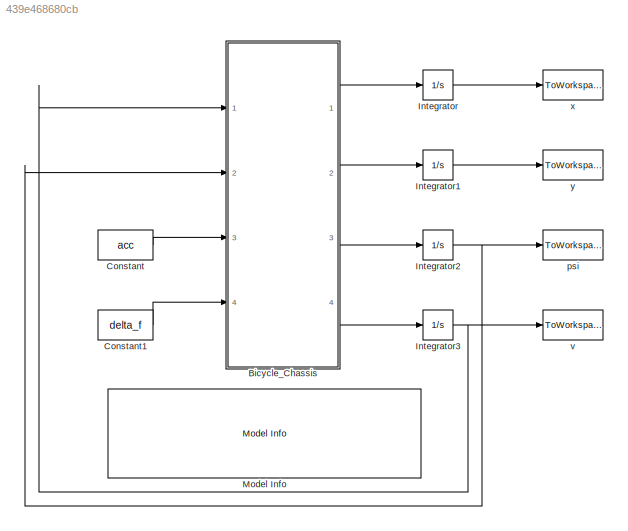
MODEL slx_439e468680cb
KIND model
CONFIG AbsTol = auto
CONFIG EnableMultiTasking = on
CONFIG FixedStep = Ts
CONFIG MaxStep = auto
CONFIG MinStep = auto
CONFIG RelTol = 1e-3
CONFIG SampleTimeConstraint = Unconstrained
CONFIG Solver = FixedStepAuto
CONFIG SolverName = FixedStepAuto
CONFIG StartTime = 0.0
CONFIG StopTime = 10.0
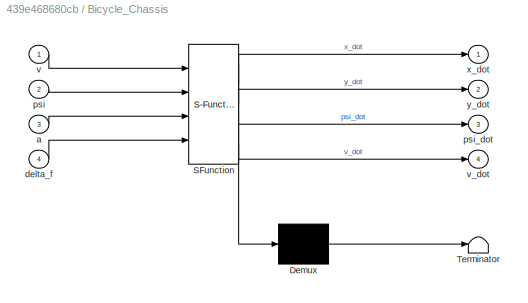
BLOCK [SubSystem]  Bicycle_Chassis
  ErrorFcn = Stateflow.Translate.translate
  PermitHierarchicalResolution = ExplicitOnly
  Ports = [4, 4]
  RequestExecContextInheritance = off
  SFBlockType = MATLAB Function
  TreatAsAtomicUnit = on
BLOCK [Demux]  Bicycle_Chassis/ Demux 
  Outputs = 1
  Ports = [1, 1]
BLOCK [S-Function]  Bicycle_Chassis/ SFunction 
  EnableBusSupport = on
  FunctionName = sf_sfun
  PortCounts = [4 5]
  Ports = [4, 5]
  SFcnIsStateOwnerBlock = off
  SFunctionDeploymentMode = off
  Tag = Stateflow S-Function bic 2
BLOCK [Terminator]  Bicycle_Chassis/ Terminator 
BLOCK [Inport]  Bicycle_Chassis/a
  IconDisplay = Port number
  Port = 3
BLOCK [Inport]  Bicycle_Chassis/delta_f
  IconDisplay = Port number
  Port = 4
BLOCK [Inport]  Bicycle_Chassis/psi
  IconDisplay = Port number
  Port = 2
BLOCK [Outport]  Bicycle_Chassis/psi_dot
  IconDisplay = Port number
  Port = 3
BLOCK [Inport]  Bicycle_Chassis/v
  IconDisplay = Port number
BLOCK [Outport]  Bicycle_Chassis/v_dot
  IconDisplay = Port number
  Port = 4
BLOCK [Outport]  Bicycle_Chassis/x_dot
  IconDisplay = Port number
BLOCK [Outport]  Bicycle_Chassis/y_dot
  IconDisplay = Port number
  Port = 2
BLOCK [Constant] Constant
  Value = acc
BLOCK [Constant] Constant1
  Value = delta_f
BLOCK [Integrator] Integrator
  InitialCondition = x_car0
  Ports = [1, 1]
BLOCK [Integrator] Integrator1
  InitialCondition = y_car0
  Ports = [1, 1]
BLOCK [Integrator] Integrator2
  InitialCondition = psi0
  Ports = [1, 1]
BLOCK [Integrator] Integrator3
  InitialCondition = v0
  Ports = [1, 1]
BLOCK [Reference] Model Info  REF=simulink/Model-Wide
Utilities/Model Info
  Ports = []
  SourceBlock = simulink/Model-Wide\nUtilities/Model Info
  SourceProductBaseCode = SL
  SourceProductName = Simulink
  SourceType = CMBlock
BLOCK [ToWorkspace] psi
  FixptAsFi = on
  MaxDataPoints = inf
  Ports = [1]
  SampleTime = -1
  Save2DSignal = 3-D array (concatenate along third dimension)
  SaveFormat = Timeseries
  VariableName = psi_state
BLOCK [ToWorkspace] v
  FixptAsFi = on
  MaxDataPoints = inf
  Ports = [1]
  SampleTime = -1
  Save2DSignal = 3-D array (concatenate along third dimension)
  SaveFormat = Timeseries
  VariableName = v_state
BLOCK [ToWorkspace] x
  FixptAsFi = on
  MaxDataPoints = inf
  Ports = [1]
  SampleTime = -1
  Save2DSignal = 3-D array (concatenate along third dimension)
  SaveFormat = Timeseries
  VariableName = x_state
BLOCK [ToWorkspace] y
  FixptAsFi = on
  MaxDataPoints = inf
  Ports = [1]
  SampleTime = -1
  Save2DSignal = 3-D array (concatenate along third dimension)
  SaveFormat = Timeseries
  VariableName = y_state
LINE  Bicycle_Chassis:1 -> Integrator:1
LINE  Bicycle_Chassis:2 -> Integrator1:1
LINE  Bicycle_Chassis:3 -> Integrator2:1
LINE  Bicycle_Chassis:4 -> Integrator3:1
LINE Constant1:1 ->  Bicycle_Chassis:4
LINE Constant:1 ->  Bicycle_Chassis:3
LINE Integrator1:1 -> y:1
NET Integrator2:1 ->  Bicycle_Chassis:2, psi:1
NET Integrator3:1 ->  Bicycle_Chassis:1, v:1
LINE Integrator:1 -> x:1
note: NET lines group one-source signal fan-out (src -> all destinations, sorted); 1:1 wires keep LINE
CHART  Bicycle_Chassis states=1 transitions=1
  STATE_LABEL 'eML_blk_kernel()'
  STATE_LABEL 'SCRIPT:\nfunction [x_dot,y_dot,psi_dot,v_dot] = bicycle(v, psi,a,delta_f)\n\nlr = 1.6;\nlf = 1.4;\nwb = lr+lf;\nbeta = atan(lr/wb*tan(delta_f));\n\nx_dot = v*cos(psi+ beta);\ny_dot = v*sin(psi+beta);\npsi_dot= v/lr*sin(beta);\nv_dot = a;\n\nend\n\n%% ref: http://www.me.berkeley.edu/~frborrel/pdfpub/IV_KinematicMPC_jason.pdf'
